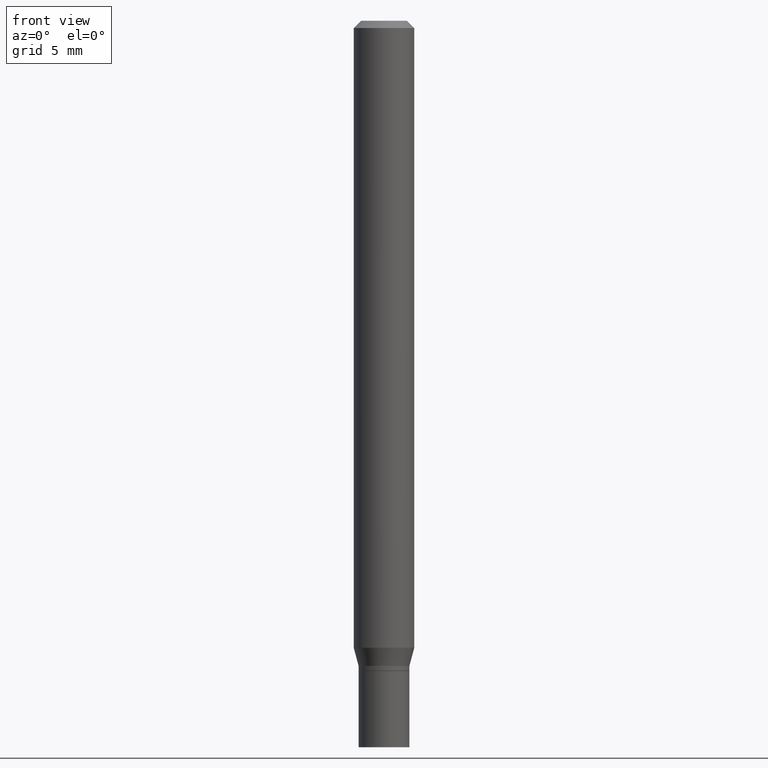
[diagram: clean part render]
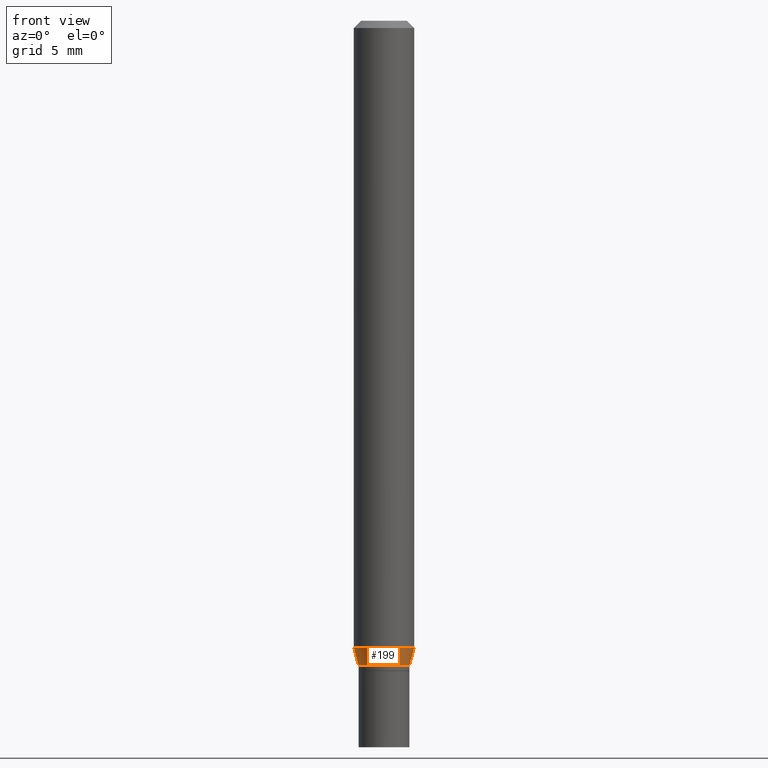
[diagram: same view with one face highlighted and labeled with its STEP entity id]
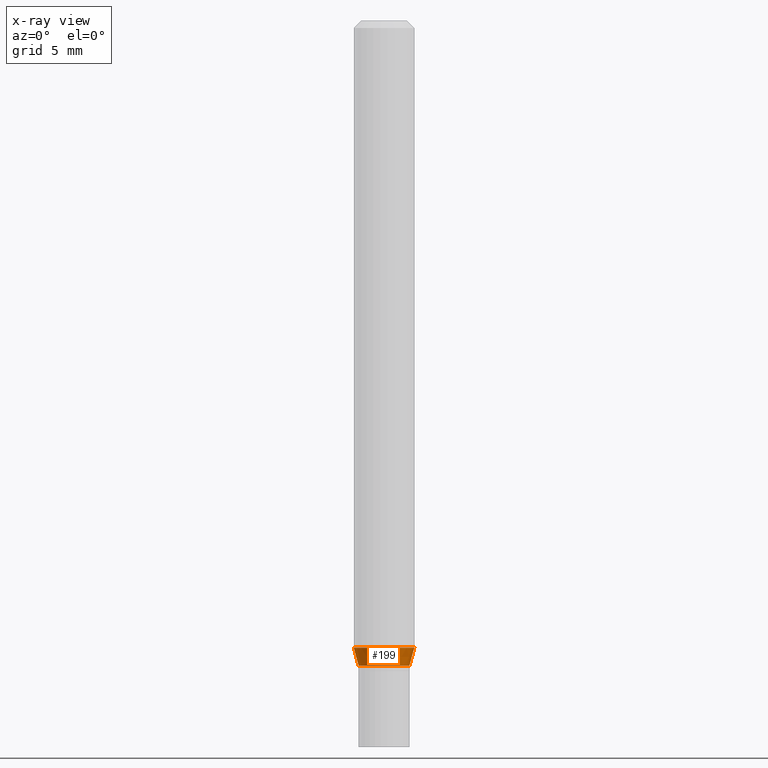
[diagram: x-ray of the same camera — body ghosted, the highlighted face saturated]
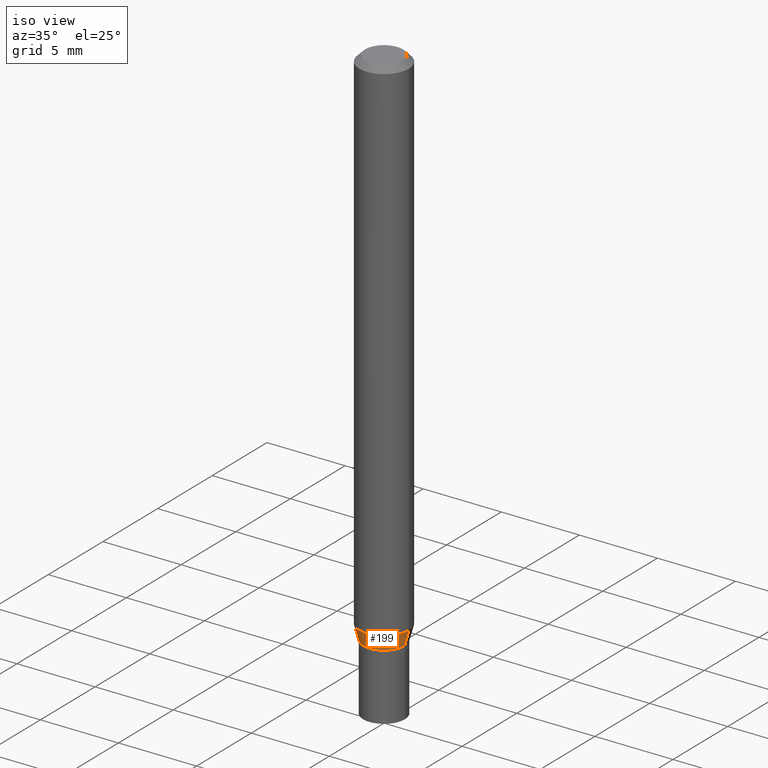
[diagram: same view with one face highlighted and labeled with its STEP entity id]
A machine part, front view. The second image highlights one B-rep face of the part: STEP entity #199.
The next image is the same camera in x-ray: the body ghosted, the highlighted face saturated — about 0% of this face is hidden behind the body in this view.
A second angle (iso view) of the same face is appended — the face is thin or edge-on in the first view.
In plain terms, the highlighted conical surface has half-angle 15 deg.
Its self-contained STEP definition (entity closure, byte-faithful):
#6 = CARTESIAN_POINT ( 'NONE',  ( 0.06250000000000000000, -4.956784453192048385E-15, -1.294679491924311199 ) ) ;
#28 = CIRCLE ( 'NONE', #83, 0.05249999999999991479 ) ;
#29 = DIRECTION ( 'NONE',  ( 1.000000000000000000, -6.982962677686261189E-15, 0.000000000000000000 ) ) ;
#31 = EDGE_CURVE ( 'NONE', #458, #197, #28, .T. ) ;
#34 = CARTESIAN_POINT ( 'NONE',  ( 3.257364449838602072E-29, -4.650653143339070101E-15, -1.332000000000000073 ) ) ;
#39 = DIRECTION ( 'NONE',  ( -2.445468806185136597E-29, 3.491481338843145583E-15, 1.000000000000000000 ) ) ;
#46 = EDGE_CURVE ( 'NONE', #296, #235, #351, .T. ) ;
#63 = EDGE_LOOP ( 'NONE', ( #441, #356, #425, #339 ) ) ;
#64 = DIRECTION ( 'NONE',  ( -0.2588190451025216277, 5.211531920934551831E-15, 0.9659258262890679791 ) ) ;
#83 = AXIS2_PLACEMENT_3D ( 'NONE', #34, #39, #29 ) ;
#92 = CARTESIAN_POINT ( 'NONE',  ( 3.257364449838602072E-29, -4.650653143339070101E-15, -1.332000000000000073 ) ) ;
#131 = LINE ( 'NONE', #267, #364 ) ;
#148 = CARTESIAN_POINT ( 'NONE',  ( 3.166098311508524347E-29, -4.520349285836657505E-15, -1.294679491924311199 ) ) ;
#181 = DIRECTION ( 'NONE',  ( -2.445468806185136597E-29, 3.491481338843145583E-15, 1.000000000000000000 ) ) ;
#195 = DIRECTION ( 'NONE',  ( 0.2588190451025216277, 1.565188264969619995E-15, 0.9659258262890679791 ) ) ;
#197 = VERTEX_POINT ( 'NONE', #294 ) ;
#199 = ADVANCED_FACE ( 'NONE', ( #443 ), #220, .T. ) ;
#204 = EDGE_CURVE ( 'NONE', #458, #296, #131, .T. ) ;
#206 = DIRECTION ( 'NONE',  ( -2.445468806185136597E-29, 3.491481338843145583E-15, 1.000000000000000000 ) ) ;
#220 = CONICAL_SURFACE ( 'NONE', #261, 0.05249999999999991479, 0.2617993877991502960 ) ;
#226 = AXIS2_PLACEMENT_3D ( 'NONE', #148, #181, #317 ) ;
#235 = VERTEX_POINT ( 'NONE', #6 ) ;
#243 = VECTOR ( 'NONE', #195, 39.37007874015748143 ) ;
#261 = AXIS2_PLACEMENT_3D ( 'NONE', #92, #206, #341 ) ;
#267 = CARTESIAN_POINT ( 'NONE',  ( -0.05249999999999991479, -4.277618207065018355E-15, -1.332000000000000073 ) ) ;
#294 = CARTESIAN_POINT ( 'NONE',  ( 0.05249999999999991479, -5.017258683917598472E-15, -1.332000000000000073 ) ) ;
#296 = VERTEX_POINT ( 'NONE', #307 ) ;
#300 = EDGE_CURVE ( 'NONE', #197, #235, #407, .T. ) ;
#307 = CARTESIAN_POINT ( 'NONE',  ( -0.06250000000000000000, -4.076260075986594889E-15, -1.294679491924311199 ) ) ;
#317 = DIRECTION ( 'NONE',  ( 1.000000000000000000, -6.982962677686262766E-15, 0.000000000000000000 ) ) ;
#339 = ORIENTED_EDGE ( 'NONE', *, *, #46, .F. ) ;
#341 = DIRECTION ( 'NONE',  ( 1.000000000000000000, -6.982962677686261189E-15, 0.000000000000000000 ) ) ;
#351 = CIRCLE ( 'NONE', #226, 0.06250000000000000000 ) ;
#355 = CARTESIAN_POINT ( 'NONE',  ( -0.05249999999999991479, -4.176939141525806622E-15, -1.332000000000000073 ) ) ;
#356 = ORIENTED_EDGE ( 'NONE', *, *, #31, .T. ) ;
#364 = VECTOR ( 'NONE', #64, 39.37007874015748143 ) ;
#407 = LINE ( 'NONE', #410, #243 ) ;
#410 = CARTESIAN_POINT ( 'NONE',  ( 0.05249999999999991479, -5.017258683917598472E-15, -1.332000000000000073 ) ) ;
#425 = ORIENTED_EDGE ( 'NONE', *, *, #300, .T. ) ;
#441 = ORIENTED_EDGE ( 'NONE', *, *, #204, .F. ) ;
#443 = FACE_OUTER_BOUND ( 'NONE', #63, .T. ) ;
#458 = VERTEX_POINT ( 'NONE', #355 ) ;